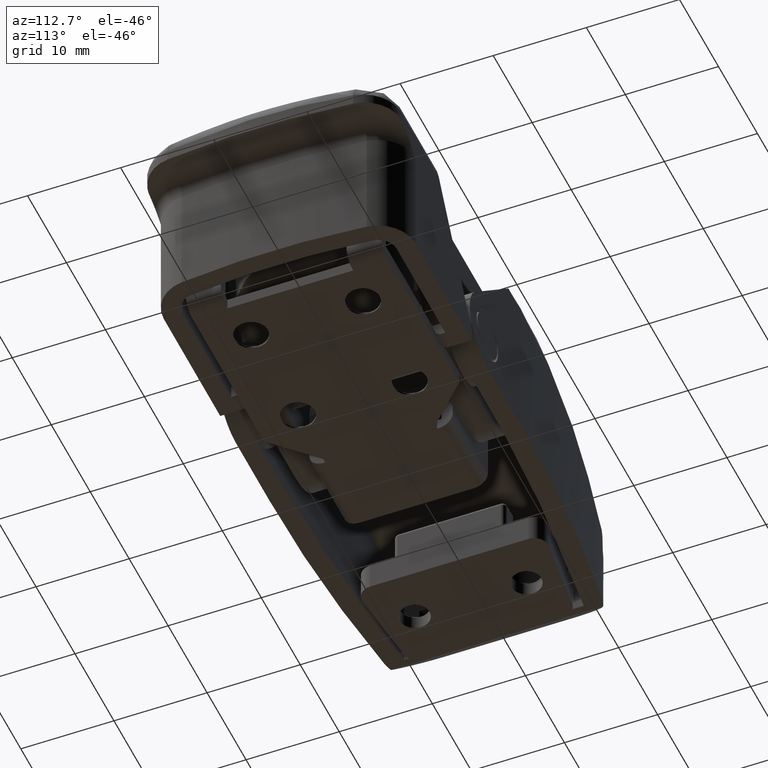
[diagram: clean part render]
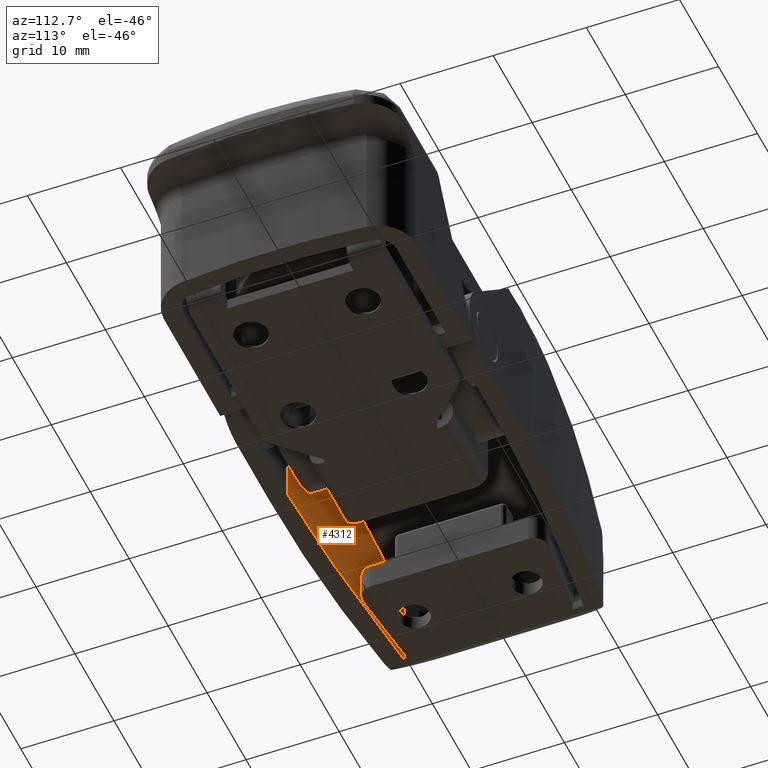
[diagram: same view with one face highlighted and labeled with its STEP entity id]
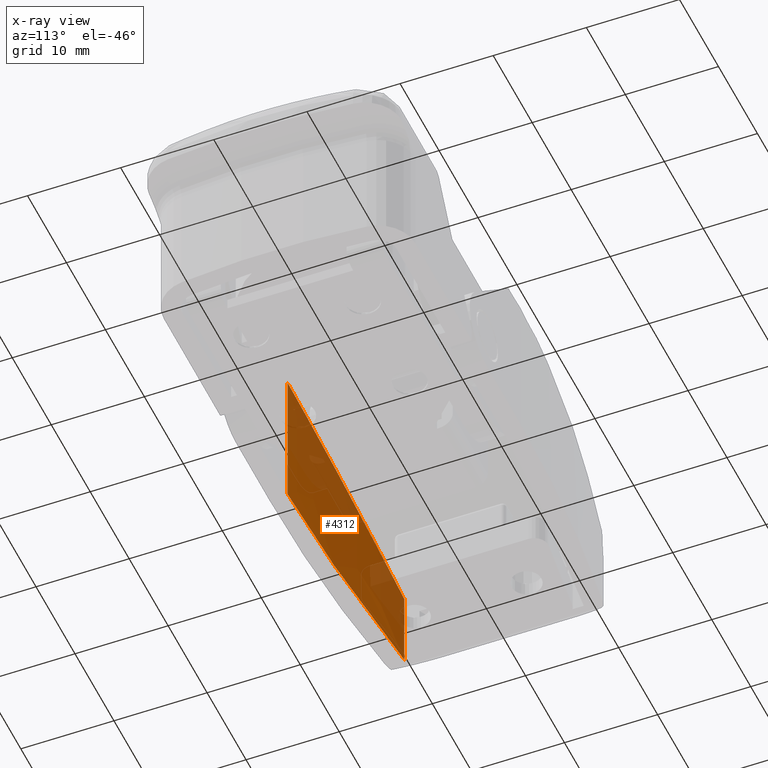
[diagram: x-ray of the same camera — body ghosted, the highlighted face saturated]
A machine part, auxiliary view. The second image highlights one B-rep face of the part: STEP entity #4312.
The next image is the same camera in x-ray: the body ghosted, the highlighted face saturated — about 41% of this face is hidden behind the body in this view.
In plain terms, the highlighted face is a freeform B-spline surface patch.
Its self-contained STEP definition (entity closure, byte-faithful):
#122=B_SPLINE_CURVE_WITH_KNOTS('',3,(#7940,#7941,#7942,#7943),
 .UNSPECIFIED.,.F.,.F.,(4,4),(0.,1.),.UNSPECIFIED.);
#124=B_SPLINE_CURVE_WITH_KNOTS('',3,(#7990,#7991,#7992,#7993),
 .UNSPECIFIED.,.F.,.F.,(4,4),(0.,1.),.UNSPECIFIED.);
#180=B_SPLINE_SURFACE_WITH_KNOTS('',3,3,((#8178,#8179,#8180,#8181),(#8182,
#8183,#8184,#8185),(#8186,#8187,#8188,#8189),(#8190,#8191,#8192,#8193)),
 .UNSPECIFIED.,.F.,.F.,.F.,(4,4),(4,4),(0.,1.),(0.,1.),.UNSPECIFIED.);
#501=FACE_OUTER_BOUND('',#785,.T.);
#785=EDGE_LOOP('',(#3380,#3381,#3382,#3383));
#1083=LINE('',#7821,#1414);
#1103=LINE('',#7980,#1434);
#1414=VECTOR('',#5300,8.65160225338316);
#1434=VECTOR('',#5356,15.8585169742453);
#1986=VERTEX_POINT('',#7818);
#1987=VERTEX_POINT('',#7820);
#2001=VERTEX_POINT('',#7938);
#2010=VERTEX_POINT('',#7978);
#2470=EDGE_CURVE('',#1987,#1986,#1083,.T.);
#2487=EDGE_CURVE('',#1986,#2001,#122,.T.);
#2505=EDGE_CURVE('',#2010,#2001,#1103,.T.);
#2509=EDGE_CURVE('',#1987,#2010,#124,.T.);
#3380=ORIENTED_EDGE('',*,*,#2470,.T.);
#3381=ORIENTED_EDGE('',*,*,#2487,.T.);
#3382=ORIENTED_EDGE('',*,*,#2505,.F.);
#3383=ORIENTED_EDGE('',*,*,#2509,.F.);
#4312=ADVANCED_FACE('',(#501),#180,.T.);
#5300=DIRECTION('',(-7.40148683083438E-16,1.,6.52043022613848E-14));
#5356=DIRECTION('',(-7.40148683083438E-16,1.,2.01182767946386E-9));
#7818=CARTESIAN_POINT('',(-34.,4.15160225338315,9.63540584321357));
#7820=CARTESIAN_POINT('',(-34.,-4.50000000000001,9.63540584321301));
#7821=CARTESIAN_POINT('',(-34.,-4.50000000000001,9.635405843213));
#7938=CARTESIAN_POINT('',(-8.49999999999998,11.3585169742453,11.5000000213267));
#7940=CARTESIAN_POINT('Ctrl Pts',(-34.,4.15160225338315,9.63540584321357));
#7941=CARTESIAN_POINT('Ctrl Pts',(-25.5,8.95621206715792,10.8784686356743));
#7942=CARTESIAN_POINT('Ctrl Pts',(-11.8333333333333,11.3585169740452,11.5000000319046));
#7943=CARTESIAN_POINT('Ctrl Pts',(-8.49999999999998,11.3585169740452,11.5000000319046));
#7978=CARTESIAN_POINT('',(-8.49999999999996,-4.50000000000002,11.5));
#7980=CARTESIAN_POINT('',(-8.49999999999996,-4.5,11.5));
#7990=CARTESIAN_POINT('Ctrl Pts',(-34.,-4.50000000000001,9.635405843213));
#7991=CARTESIAN_POINT('Ctrl Pts',(-25.5,-4.50000000000002,10.8784686144043));
#7992=CARTESIAN_POINT('Ctrl Pts',(-11.8333333333333,-4.5,11.5));
#7993=CARTESIAN_POINT('Ctrl Pts',(-8.49999999999996,-4.5,11.5));
#8178=CARTESIAN_POINT('Ctrl Pts',(-34.,-4.50000000000001,9.635405843213));
#8179=CARTESIAN_POINT('Ctrl Pts',(-25.5,-4.50000000000002,10.8784686144043));
#8180=CARTESIAN_POINT('Ctrl Pts',(-11.8333333333333,-4.5,11.5));
#8181=CARTESIAN_POINT('Ctrl Pts',(-8.49999999999996,-4.5,11.5));
#8182=CARTESIAN_POINT('Ctrl Pts',(-34.,-1.61613258220562,9.63540584321319));
#8183=CARTESIAN_POINT('Ctrl Pts',(-25.5,-0.0145959776140481,10.8784686214943));
#8184=CARTESIAN_POINT('Ctrl Pts',(-11.8333333333333,0.786172324681765,11.5000000106349));
#8185=CARTESIAN_POINT('Ctrl Pts',(-8.49999999999996,0.786172324681768,11.5000000106349));
#8186=CARTESIAN_POINT('Ctrl Pts',(-34.,1.26773483558877,9.63540584321338));
#8187=CARTESIAN_POINT('Ctrl Pts',(-25.5,4.47080804477194,10.8784686285843));
#8188=CARTESIAN_POINT('Ctrl Pts',(-11.8333333333333,6.07234464936354,11.5000000212697));
#8189=CARTESIAN_POINT('Ctrl Pts',(-8.49999999999997,6.07234464936354,11.5000000212697));
#8190=CARTESIAN_POINT('Ctrl Pts',(-34.,4.15160225338315,9.63540584321357));
#8191=CARTESIAN_POINT('Ctrl Pts',(-25.5,8.95621206715792,10.8784686356743));
#8192=CARTESIAN_POINT('Ctrl Pts',(-11.8333333333333,11.3585169740453,11.5000000319046));
#8193=CARTESIAN_POINT('Ctrl Pts',(-8.49999999999997,11.3585169740453,11.5000000319046));